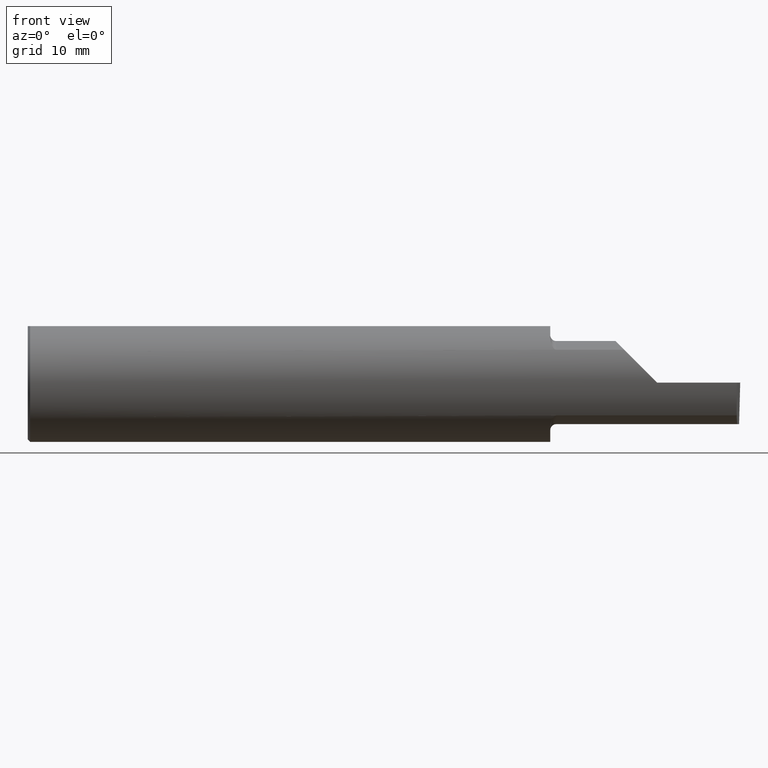
[diagram: clean part render]
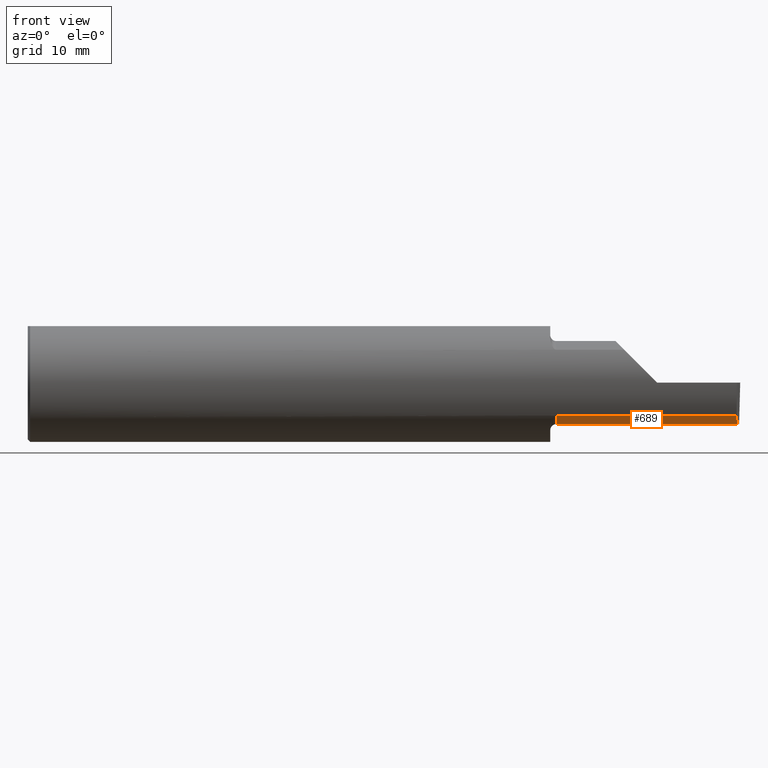
[diagram: same view with one face highlighted and labeled with its STEP entity id]
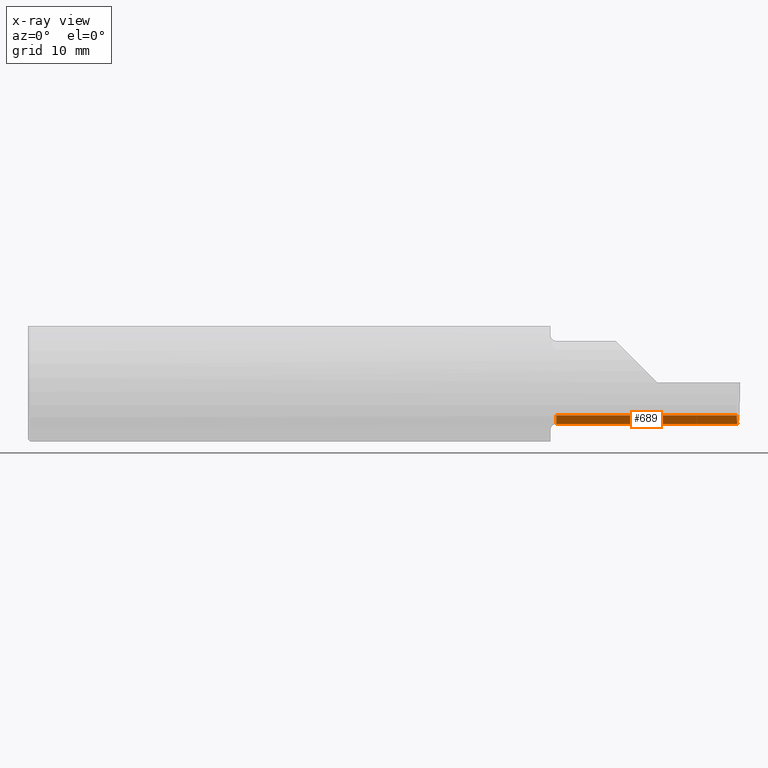
[diagram: x-ray of the same camera — body ghosted, the highlighted face saturated]
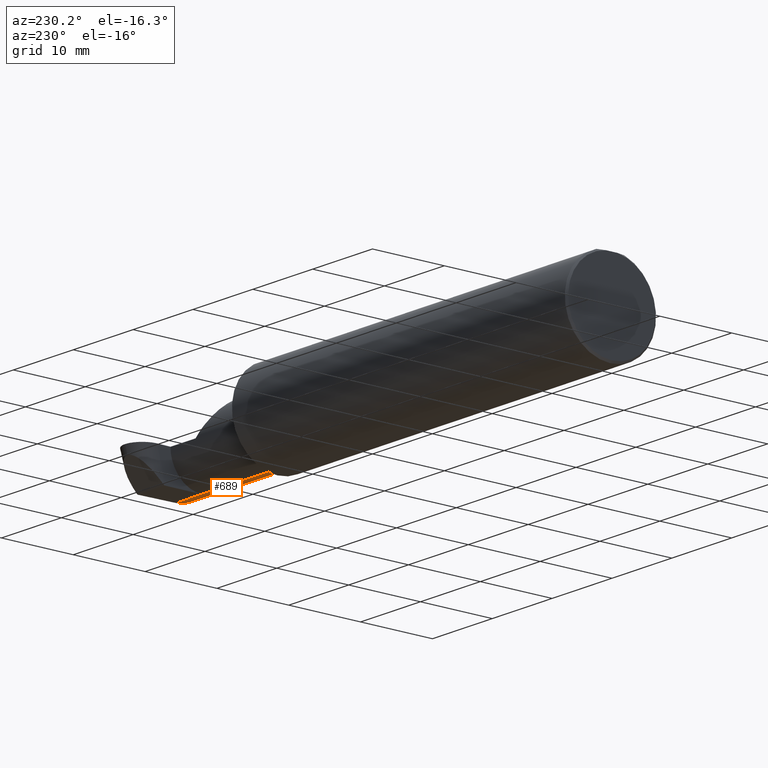
[diagram: same view with one face highlighted and labeled with its STEP entity id]
A machine part, front view. The second image highlights one B-rep face of the part: STEP entity #689.
The next image is the same camera in x-ray: the body ghosted, the highlighted face saturated — about 0% of this face is hidden behind the body in this view.
A second angle (auxiliary view) of the same face is appended — the face is thin or edge-on in the first view.
In plain terms, the highlighted cylindrical surface (partial cylindrical patch) has radius 4.445 mm, axis along (-1, -0, -0).
Its self-contained STEP definition (entity closure, byte-faithful):
#42 = EDGE_CURVE ( 'NONE', #433, #574, #50, .T. ) ;
#50 = CIRCLE ( 'NONE', #813, 0.1750000000000000167 ) ;
#84 = FACE_OUTER_BOUND ( 'NONE', #424, .T. ) ;
#85 = ORIENTED_EDGE ( 'NONE', *, *, #422, .T. ) ;
#94 = DIRECTION ( 'NONE',  ( 0.000000000000000000, 0.000000000000000000, 1.000000000000000000 ) ) ;
#157 = CARTESIAN_POINT ( 'NONE',  ( 3.402190948718818664, -0.1008500000000001340, -0.1750000000000000722 ) ) ;
#195 = VERTEX_POINT ( 'NONE', #283 ) ;
#246 = CARTESIAN_POINT ( 'NONE',  ( 2.225000000000000089, -0.1008500000000000091, -0.1750000000000000167 ) ) ;
#264 = EDGE_CURVE ( 'NONE', #387, #433, #293, .T. ) ;
#283 = CARTESIAN_POINT ( 'NONE',  ( 2.985032866776429650, -0.2080850024789289987, -0.1382955322609668025 ) ) ;
#290 = VERTEX_POINT ( 'NONE', #794 ) ;
#293 = LINE ( 'NONE', #673, #317 ) ;
#317 = VECTOR ( 'NONE', #621, 39.37007874015748143 ) ;
#330 = ORIENTED_EDGE ( 'NONE', *, *, #42, .F. ) ;
#357 = VECTOR ( 'NONE', #489, 39.37007874015748143 ) ;
#387 = VERTEX_POINT ( 'NONE', #812 ) ;
#393 = CARTESIAN_POINT ( 'NONE',  ( 2.225000000000000089, -0.1008500000000000091, 0.000000000000000000 ) ) ;
#400 = ORIENTED_EDGE ( 'NONE', *, *, #526, .F. ) ;
#417 = CYLINDRICAL_SURFACE ( 'NONE', #446, 0.1750000000000000444 ) ;
#422 = EDGE_CURVE ( 'NONE', #195, #574, #538, .T. ) ;
#424 = EDGE_LOOP ( 'NONE', ( #799, #479, #400, #85, #330 ) ) ;
#428 = DIRECTION ( 'NONE',  ( -1.000000000000000000, -0.000000000000000000, -0.000000000000000000 ) ) ;
#433 = VERTEX_POINT ( 'NONE', #246 ) ;
#446 = AXIS2_PLACEMENT_3D ( 'NONE', #608, #481, #94 ) ;
#470 = EDGE_CURVE ( 'NONE', #290, #387, #559, .T. ) ;
#479 = ORIENTED_EDGE ( 'NONE', *, *, #470, .F. ) ;
#481 = DIRECTION ( 'NONE',  ( -1.000000000000000000, -0.000000000000000000, -0.000000000000000000 ) ) ;
#489 = DIRECTION ( 'NONE',  ( -1.000000000000000000, -0.000000000000000000, -0.000000000000000000 ) ) ;
#526 = EDGE_CURVE ( 'NONE', #195, #290, #672, .T. ) ;
#538 = LINE ( 'NONE', #793, #715 ) ;
#559 = LINE ( 'NONE', #157, #357 ) ;
#567 = CARTESIAN_POINT ( 'NONE',  ( 2.986768025497130274, -0.1400387324517230747, -0.1750000000000000444 ) ) ;
#574 = VERTEX_POINT ( 'NONE', #645 ) ;
#608 = CARTESIAN_POINT ( 'NONE',  ( 2.200000000000000178, -0.1008500000000000091, 0.000000000000000000 ) ) ;
#621 = DIRECTION ( 'NONE',  ( -1.000000000000000000, -0.000000000000000000, -0.000000000000000000 ) ) ;
#644 = DIRECTION ( 'NONE',  ( -1.000000000000000000, -0.000000000000000000, -0.000000000000000000 ) ) ;
#645 = CARTESIAN_POINT ( 'NONE',  ( 2.225000000000000089, -0.2080850024789288599, -0.1382955322609668025 ) ) ;
#672 =( BOUNDED_CURVE ( )  B_SPLINE_CURVE ( 3, ( #821, #712, #567, #818 ),
 .UNSPECIFIED., .F., .F. ) 
 B_SPLINE_CURVE_WITH_KNOTS ( ( 4, 4 ),
 ( 0.4474640105399657064, 1.107026853503870978 ),
 .UNSPECIFIED. ) 
 CURVE ( )  GEOMETRIC_REPRESENTATION_ITEM ( )  RATIONAL_B_SPLINE_CURVE ( ( 1.000000000000000000, 0.9640754331822831702, 0.9640754331822831702, 1.000000000000000000 ) ) 
 REPRESENTATION_ITEM ( '' )  );
#673 = CARTESIAN_POINT ( 'NONE',  ( 2.200000000000000178, -0.1008499999999999952, -0.1750000000000000444 ) ) ;
#689 = ADVANCED_FACE ( 'NONE', ( #84 ), #417, .T. ) ;
#712 = CARTESIAN_POINT ( 'NONE',  ( 2.985694921565461790, -0.1771157075472508391, -0.1623092683844332140 ) ) ;
#715 = VECTOR ( 'NONE', #428, 39.37007874015748143 ) ;
#793 = CARTESIAN_POINT ( 'NONE',  ( 2.518342309999999529, -0.2080850024789289987, -0.1382955322609668025 ) ) ;
#794 = CARTESIAN_POINT ( 'NONE',  ( 2.988136526189751230, -0.1008500000000001340, -0.1750000000000000722 ) ) ;
#799 = ORIENTED_EDGE ( 'NONE', *, *, #264, .F. ) ;
#812 = CARTESIAN_POINT ( 'NONE',  ( 2.817597862438286249, -0.1008500000000000368, -0.1750000000000000444 ) ) ;
#813 = AXIS2_PLACEMENT_3D ( 'NONE', #393, #644, #817 ) ;
#817 = DIRECTION ( 'NONE',  ( 0.000000000000000000, 0.000000000000000000, 1.000000000000000000 ) ) ;
#818 = CARTESIAN_POINT ( 'NONE',  ( 2.988136526189751230, -0.1008500000000001340, -0.1750000000000000722 ) ) ;
#821 = CARTESIAN_POINT ( 'NONE',  ( 2.985032866776429650, -0.2080850024789289987, -0.1382955322609668025 ) ) ;